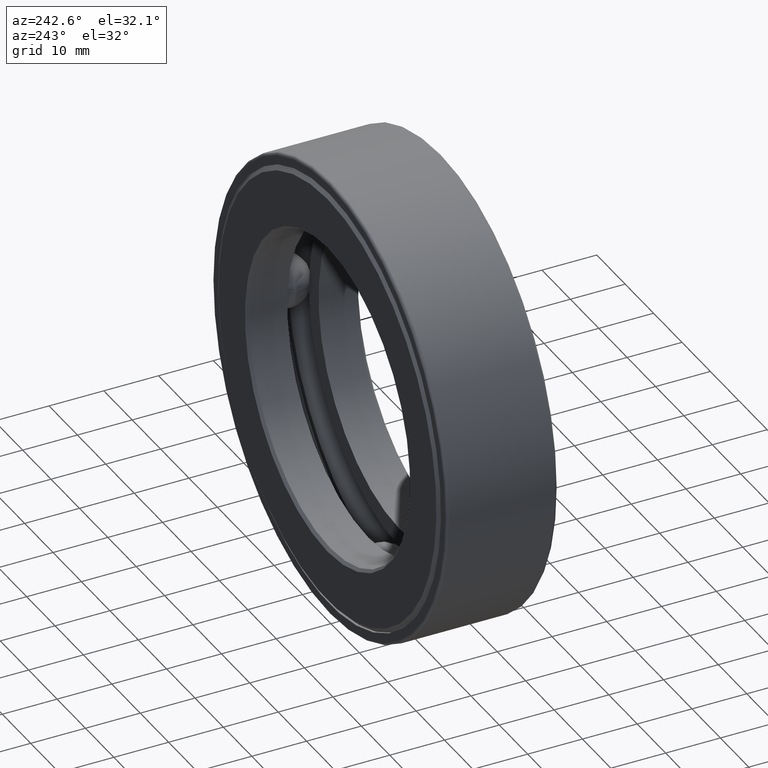
[diagram: clean part render]
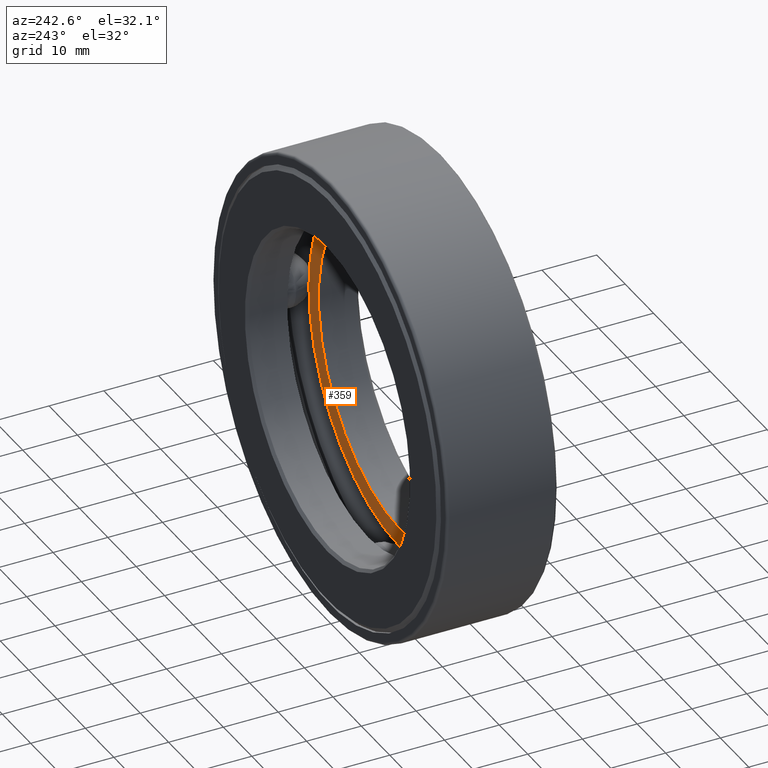
[diagram: same view with one face highlighted and labeled with its STEP entity id]
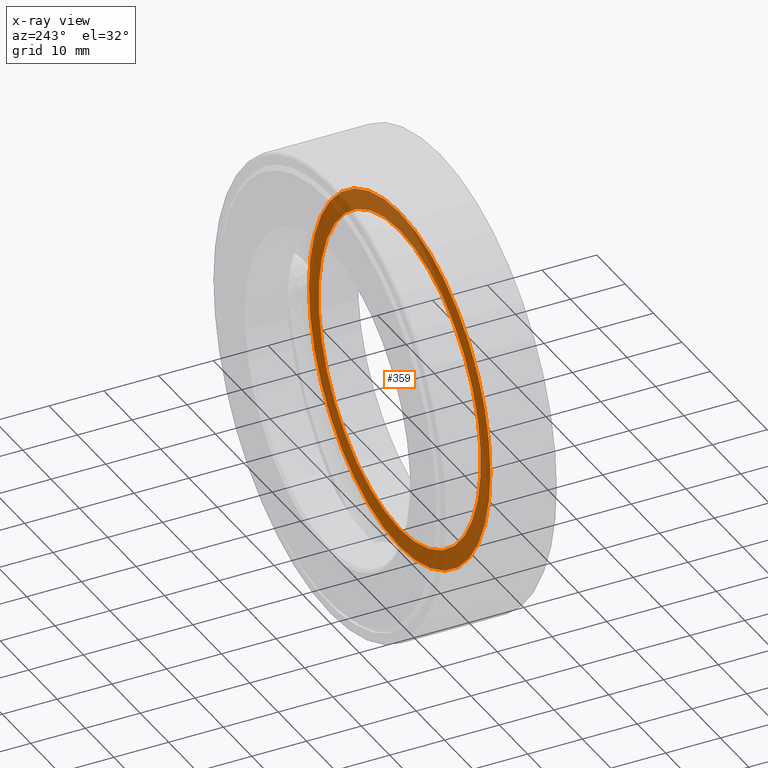
[diagram: x-ray of the same camera — body ghosted, the highlighted face saturated]
A machine part, auxiliary view. The second image highlights one B-rep face of the part: STEP entity #359.
The next image is the same camera in x-ray: the body ghosted, the highlighted face saturated — about 50% of this face is hidden behind the body in this view.
In plain terms, the highlighted planar face has unit normal (0, -1, 0).
Its self-contained STEP definition (entity closure, byte-faithful):
#8 = ORIENTED_EDGE ( 'NONE', *, *, #42, .F. ) ;
#42 = EDGE_CURVE ( 'NONE', #315, #315, #207, .T. ) ;
#59 = CIRCLE ( 'NONE', #458, 1.258499999999999700 ) ;
#103 = EDGE_LOOP ( 'NONE', ( #201 ) ) ;
#136 = CARTESIAN_POINT ( 'NONE',  ( 0.0000000000000000000, 0.2937499999999999600, 0.0000000000000000000 ) ) ;
#137 = VERTEX_POINT ( 'NONE', #591 ) ;
#143 = DIRECTION ( 'NONE',  ( -0.0000000000000000000, 1.000000000000000000, -0.0000000000000000000 ) ) ;
#176 = AXIS2_PLACEMENT_3D ( 'NONE', #368, #409, #318 ) ;
#185 = EDGE_CURVE ( 'NONE', #137, #137, #59, .T. ) ;
#201 = ORIENTED_EDGE ( 'NONE', *, *, #185, .T. ) ;
#207 = CIRCLE ( 'NONE', #176, 1.125000000000000200 ) ;
#217 = CARTESIAN_POINT ( 'NONE',  ( 0.0000000000000000000, 0.2937500000000000700, 1.125000000000000200 ) ) ;
#242 = DIRECTION ( 'NONE',  ( 0.0000000000000000000, 0.0000000000000000000, 1.000000000000000000 ) ) ;
#245 = FACE_BOUND ( 'NONE', #401, .T. ) ;
#258 = CARTESIAN_POINT ( 'NONE',  ( -2.254158281288996200E-016, 0.2937499999999999600, 0.0000000000000000000 ) ) ;
#309 = AXIS2_PLACEMENT_3D ( 'NONE', #258, #314, #494 ) ;
#314 = DIRECTION ( 'NONE',  ( 0.0000000000000000000, -1.000000000000000000, 0.0000000000000000000 ) ) ;
#315 = VERTEX_POINT ( 'NONE', #217 ) ;
#318 = DIRECTION ( 'NONE',  ( 0.0000000000000000000, 0.0000000000000000000, 1.000000000000000000 ) ) ;
#356 = PLANE ( 'NONE',  #309 ) ;
#359 = ADVANCED_FACE ( 'NONE', ( #245, #594 ), #356, .F. ) ;
#368 = CARTESIAN_POINT ( 'NONE',  ( 0.0000000000000000000, 0.2937500000000000700, 0.0000000000000000000 ) ) ;
#401 = EDGE_LOOP ( 'NONE', ( #8 ) ) ;
#409 = DIRECTION ( 'NONE',  ( -0.0000000000000000000, 1.000000000000000000, -0.0000000000000000000 ) ) ;
#458 = AXIS2_PLACEMENT_3D ( 'NONE', #136, #143, #242 ) ;
#494 = DIRECTION ( 'NONE',  ( 0.0000000000000000000, -0.0000000000000000000, -1.000000000000000000 ) ) ;
#591 = CARTESIAN_POINT ( 'NONE',  ( 0.0000000000000000000, 0.2937499999999999600, 1.258499999999999700 ) ) ;
#594 = FACE_OUTER_BOUND ( 'NONE', #103, .T. ) ;